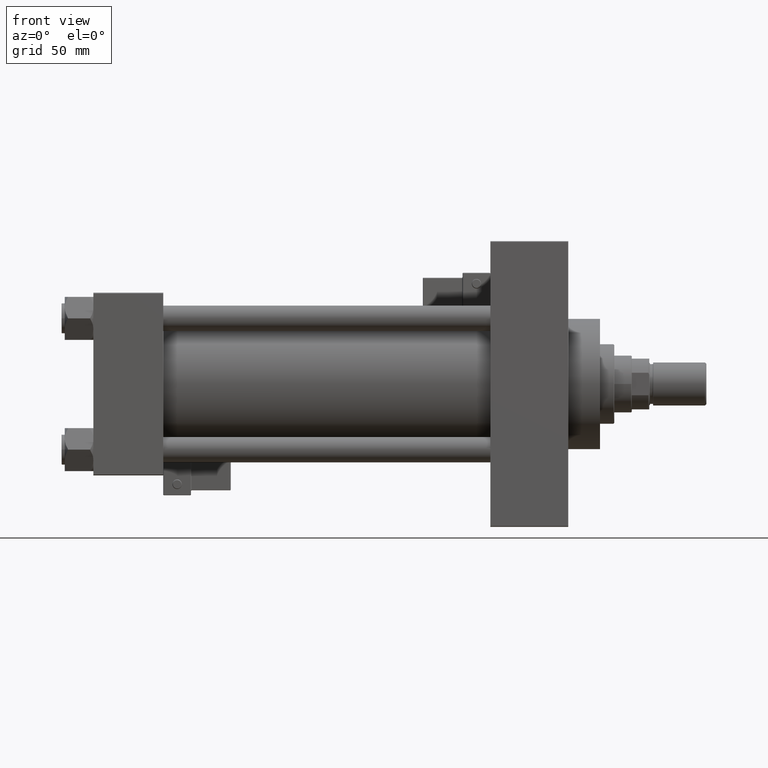
[diagram: clean part render]
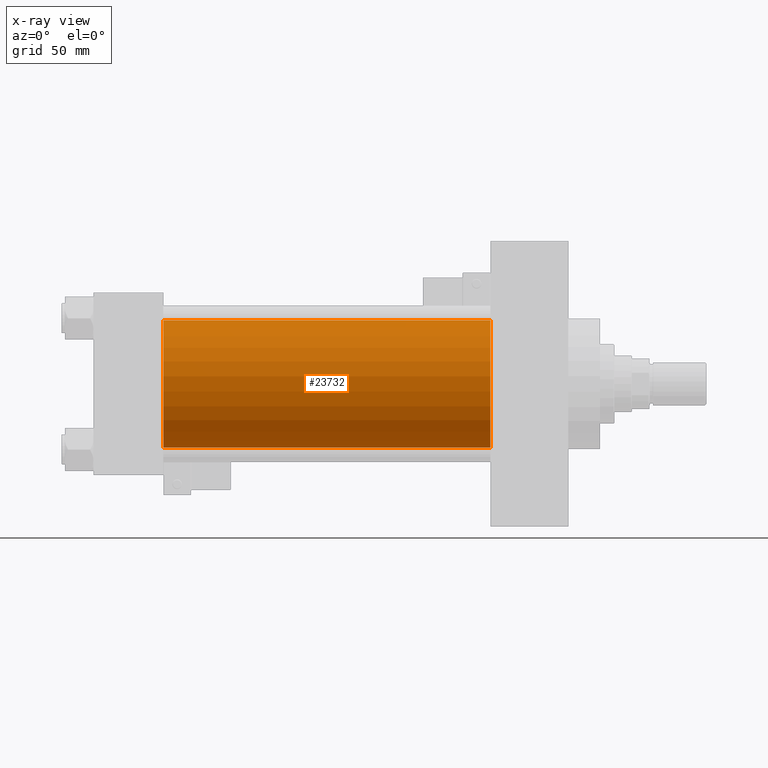
[diagram: x-ray — body ghosted, one internal face saturated and labeled with its STEP entity id]
A machine part, front view, then the same camera in x-ray: the body is ghosted and one INTERNAL B-rep face — a face not visible from any outside direction — is saturated and labeled: STEP entity #23732.
In plain terms, the highlighted cylindrical surface (partial cylindrical patch) has radius 40 mm, axis along (-1, -0, -0).
Its self-contained STEP definition (entity closure, byte-faithful):
#1448 = CARTESIAN_POINT ( 'NONE',  ( 44.00000000000000000, -2.602085213965210642E-15, 0.000000000000000000 ) ) ;
#1480 = EDGE_CURVE ( 'NONE', #23751, #13105, #45195, .T. ) ;
#3611 = ORIENTED_EDGE ( 'NONE', *, *, #30532, .T. ) ;
#7238 = FACE_OUTER_BOUND ( 'NONE', #34389, .T. ) ;
#8573 = DIRECTION ( 'NONE',  ( -1.000000000000000000, -0.000000000000000000, -0.000000000000000000 ) ) ;
#9570 = DIRECTION ( 'NONE',  ( 1.000000000000000000, 0.000000000000000000, 0.000000000000000000 ) ) ;
#11299 = CARTESIAN_POINT ( 'NONE',  ( 44.00000000000000000, -2.602085213965210642E-15, 40.00000000000000000 ) ) ;
#13105 = VERTEX_POINT ( 'NONE', #11299 ) ;
#13630 = DIRECTION ( 'NONE',  ( 1.000000000000000000, 0.000000000000000000, 0.000000000000000000 ) ) ;
#15198 = DIRECTION ( 'NONE',  ( -1.000000000000000000, -0.000000000000000000, -0.000000000000000000 ) ) ;
#17612 = DIRECTION ( 'NONE',  ( 0.000000000000000000, 0.000000000000000000, -1.000000000000000000 ) ) ;
#19982 = LINE ( 'NONE', #52358, #39363 ) ;
#22191 = ORIENTED_EDGE ( 'NONE', *, *, #1480, .F. ) ;
#23415 = CARTESIAN_POINT ( 'NONE',  ( 250.0000000000000000, -2.602085213965210642E-15, 40.00000000000000000 ) ) ;
#23732 = ADVANCED_FACE ( 'NONE', ( #7238 ), #43594, .F. ) ;
#23751 = VERTEX_POINT ( 'NONE', #23415 ) ;
#25490 = CARTESIAN_POINT ( 'NONE',  ( 250.0000000000000000, -2.602085213965210642E-15, 0.000000000000000000 ) ) ;
#28735 = CARTESIAN_POINT ( 'NONE',  ( 250.0000000000000000, -2.602085213965210642E-15, 40.00000000000000000 ) ) ;
#30532 = EDGE_CURVE ( 'NONE', #23751, #39100, #35866, .T. ) ;
#32953 = EDGE_CURVE ( 'NONE', #39100, #45123, #19982, .T. ) ;
#33505 = ORIENTED_EDGE ( 'NONE', *, *, #32953, .T. ) ;
#34389 = EDGE_LOOP ( 'NONE', ( #3611, #33505, #45060, #22191 ) ) ;
#35866 = CIRCLE ( 'NONE', #36715, 40.00000000000000000 ) ;
#36448 = DIRECTION ( 'NONE',  ( -1.000000000000000000, -0.000000000000000000, -0.000000000000000000 ) ) ;
#36715 = AXIS2_PLACEMENT_3D ( 'NONE', #25490, #9570, #49913 ) ;
#39100 = VERTEX_POINT ( 'NONE', #50942 ) ;
#39102 = CARTESIAN_POINT ( 'NONE',  ( 250.0000000000000000, -2.602085213965210642E-15, 0.000000000000000000 ) ) ;
#39363 = VECTOR ( 'NONE', #36448, 1000.000000000000000 ) ;
#43249 = AXIS2_PLACEMENT_3D ( 'NONE', #1448, #13630, #17612 ) ;
#43594 = CYLINDRICAL_SURFACE ( 'NONE', #44925, 40.00000000000000000 ) ;
#44925 = AXIS2_PLACEMENT_3D ( 'NONE', #39102, #15198, #51299 ) ;
#45060 = ORIENTED_EDGE ( 'NONE', *, *, #51316, .F. ) ;
#45123 = VERTEX_POINT ( 'NONE', #47188 ) ;
#45195 = LINE ( 'NONE', #28735, #46958 ) ;
#46609 = CIRCLE ( 'NONE', #43249, 40.00000000000000000 ) ;
#46958 = VECTOR ( 'NONE', #8573, 1000.000000000000000 ) ;
#47188 = CARTESIAN_POINT ( 'NONE',  ( 44.00000000000000000, 2.296501982624201990E-15, -40.00000000000000000 ) ) ;
#49913 = DIRECTION ( 'NONE',  ( 0.000000000000000000, 0.000000000000000000, -1.000000000000000000 ) ) ;
#50942 = CARTESIAN_POINT ( 'NONE',  ( 250.0000000000000000, 2.296501982624201990E-15, -40.00000000000000000 ) ) ;
#51299 = DIRECTION ( 'NONE',  ( 0.000000000000000000, 0.000000000000000000, 1.000000000000000000 ) ) ;
#51316 = EDGE_CURVE ( 'NONE', #13105, #45123, #46609, .T. ) ;
#52358 = CARTESIAN_POINT ( 'NONE',  ( 250.0000000000000000, 2.296501982624201990E-15, -40.00000000000000000 ) ) ;